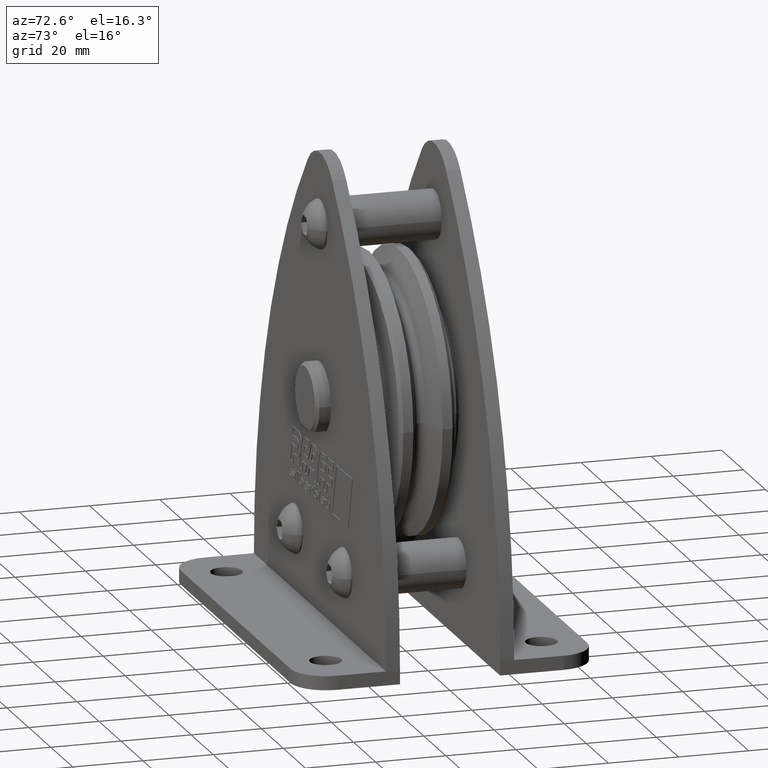
[diagram: clean part render]
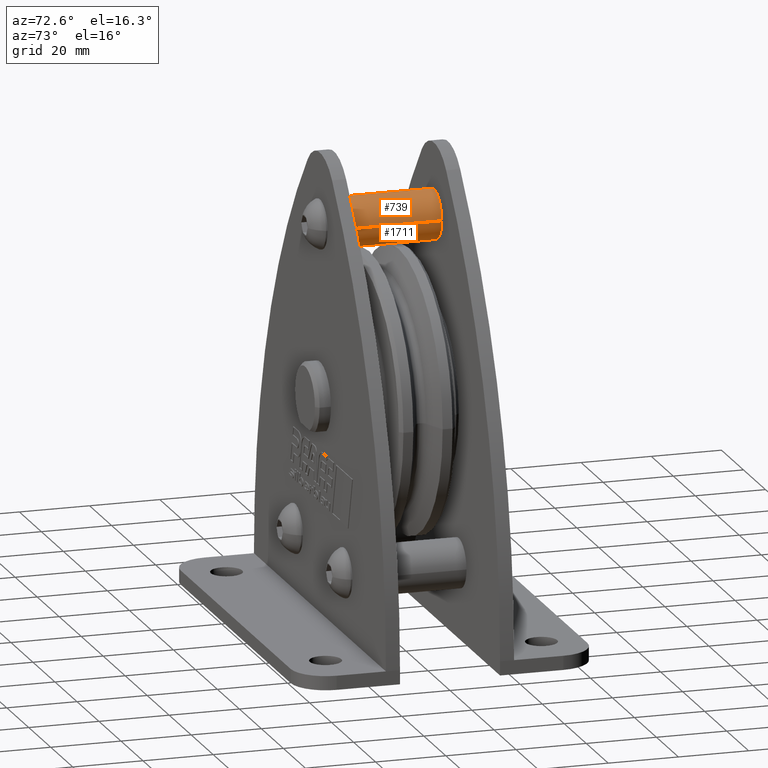
[diagram: same view with one multi-face feature highlighted, each face labeled with its STEP entity id]
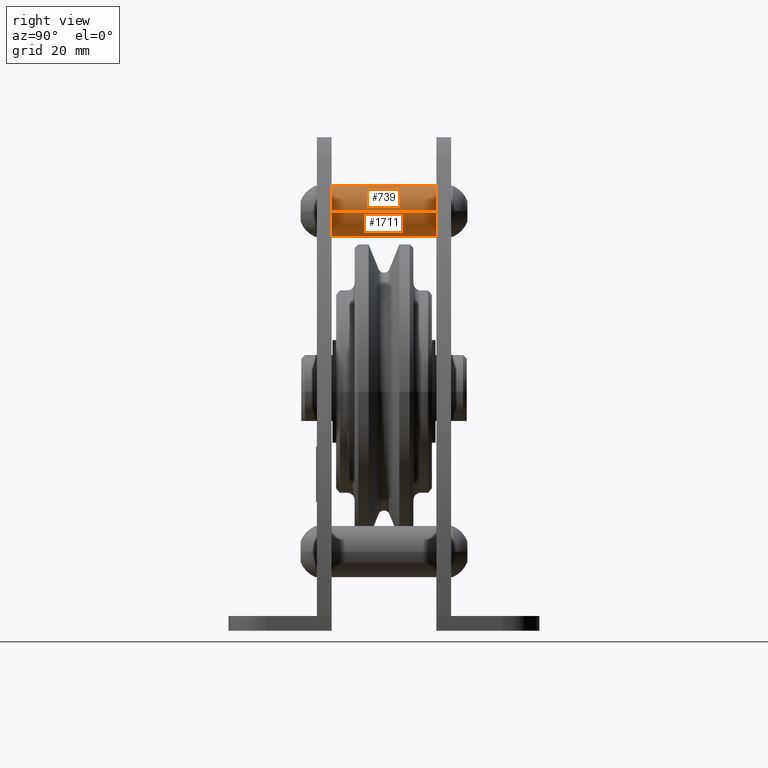
[diagram: same view with one multi-face feature highlighted, each face labeled with its STEP entity id]
A machine part, auxiliary view. The highlighted faces form ONE feature: a constant-radius fillet chain: 2 tangent blend faces with common blend radius 7 mm. The faces share edges in the B-rep.
A second angle (right view) of the same feature is appended — it is thin or edge-on in the first view.
Their STEP definitions:
[1] entity #1711 (Cylinder):
#1711=ADVANCED_FACE('',(#3612),#3613,.T.);
#3612=FACE_OUTER_BOUND('',#5682,.T.);
#3613=CYLINDRICAL_SURFACE('',#5683,7.0);
#5682=EDGE_LOOP('',(#11128,#11129,#11130,#11131));
#5683=AXIS2_PLACEMENT_3D('',#11132,#11133,#11134);
#11128=ORIENTED_EDGE('',*,*,#12521,.T.);
#11129=ORIENTED_EDGE('',*,*,#14383,.F.);
#11130=ORIENTED_EDGE('',*,*,#12523,.T.);
#11131=ORIENTED_EDGE('',*,*,#14384,.F.);
#11132=CARTESIAN_POINT('',(0.0,0.0,49.0));
#11133=DIRECTION('',(0.0,-1.0,0.0));
#11134=DIRECTION('',(1.0,0.0,0.0));
#12521=EDGE_CURVE('',#15095,#15096,#15097,.T.);
#12523=EDGE_CURVE('',#15100,#15098,#15101,.T.);
#14383=EDGE_CURVE('',#15100,#15096,#17853,.T.);
#14384=EDGE_CURVE('',#15095,#15098,#17854,.T.);
#15095=VERTEX_POINT('',#19615);
#15096=VERTEX_POINT('',#19616);
#15097=LINE('',#19617,#19618);
#15098=VERTEX_POINT('',#19619);
#15100=VERTEX_POINT('',#19621);
#15101=LINE('',#19622,#19623);
#17853=CIRCLE('',#25745,7.0);
#17854=CIRCLE('',#25746,7.0);
#19615=CARTESIAN_POINT('',(7.0,14.25,49.0));
#19616=CARTESIAN_POINT('',(7.0,-14.25,49.0));
#19617=CARTESIAN_POINT('',(7.0,0.0,49.0));
#19618=VECTOR('',#26729,1.0);
#19619=CARTESIAN_POINT('',(-7.0,14.25,49.0));
#19621=CARTESIAN_POINT('',(-7.0,-14.25,49.0));
#19622=CARTESIAN_POINT('',(-7.0,0.0,49.0));
#19623=VECTOR('',#26733,1.0);
#25745=AXIS2_PLACEMENT_3D('',#28809,#28810,#28811);
#25746=AXIS2_PLACEMENT_3D('',#28812,#28813,#28814);
#26729=DIRECTION('',(0.0,-1.0,0.0));
#26733=DIRECTION('',(-0.0,1.0,-0.0));
#28809=CARTESIAN_POINT('',(0.0,-14.25,49.0));
#28810=DIRECTION('',(0.0,-1.0,0.0));
#28811=DIRECTION('',(1.0,0.0,0.0));
#28812=CARTESIAN_POINT('',(0.0,14.25,49.0));
#28813=DIRECTION('',(-0.0,1.0,0.0));
#28814=DIRECTION('',(1.0,0.0,0.0));
[2] entity #739 (Cylinder):
#739=ADVANCED_FACE('',(#2101),#2102,.T.);
#2101=FACE_OUTER_BOUND('',#4171,.T.);
#2102=CYLINDRICAL_SURFACE('',#4172,7.0);
#4171=EDGE_LOOP('',(#6399,#6400,#6401,#6402));
#4172=AXIS2_PLACEMENT_3D('',#6403,#6404,#6405);
#6399=ORIENTED_EDGE('',*,*,#12521,.F.);
#6400=ORIENTED_EDGE('',*,*,#12522,.F.);
#6401=ORIENTED_EDGE('',*,*,#12523,.F.);
#6402=ORIENTED_EDGE('',*,*,#12524,.F.);
#6403=CARTESIAN_POINT('',(0.0,0.0,49.0));
#6404=DIRECTION('',(0.0,-1.0,0.0));
#6405=DIRECTION('',(1.0,0.0,0.0));
#12521=EDGE_CURVE('',#15095,#15096,#15097,.T.);
#12522=EDGE_CURVE('',#15098,#15095,#15099,.T.);
#12523=EDGE_CURVE('',#15100,#15098,#15101,.T.);
#12524=EDGE_CURVE('',#15096,#15100,#15102,.T.);
#15095=VERTEX_POINT('',#19615);
#15096=VERTEX_POINT('',#19616);
#15097=LINE('',#19617,#19618);
#15098=VERTEX_POINT('',#19619);
#15099=CIRCLE('',#19620,7.0);
#15100=VERTEX_POINT('',#19621);
#15101=LINE('',#19622,#19623);
#15102=CIRCLE('',#19624,7.0);
#19615=CARTESIAN_POINT('',(7.0,14.25,49.0));
#19616=CARTESIAN_POINT('',(7.0,-14.25,49.0));
#19617=CARTESIAN_POINT('',(7.0,0.0,49.0));
#19618=VECTOR('',#26729,1.0);
#19619=CARTESIAN_POINT('',(-7.0,14.25,49.0));
#19620=AXIS2_PLACEMENT_3D('',#26730,#26731,#26732);
#19621=CARTESIAN_POINT('',(-7.0,-14.25,49.0));
#19622=CARTESIAN_POINT('',(-7.0,0.0,49.0));
#19623=VECTOR('',#26733,1.0);
#19624=AXIS2_PLACEMENT_3D('',#26734,#26735,#26736);
#26729=DIRECTION('',(0.0,-1.0,0.0));
#26730=CARTESIAN_POINT('',(0.0,14.25,49.0));
#26731=DIRECTION('',(-0.0,1.0,0.0));
#26732=DIRECTION('',(1.0,0.0,0.0));
#26733=DIRECTION('',(-0.0,1.0,-0.0));
#26734=CARTESIAN_POINT('',(0.0,-14.25,49.0));
#26735=DIRECTION('',(0.0,-1.0,0.0));
#26736=DIRECTION('',(1.0,0.0,0.0));